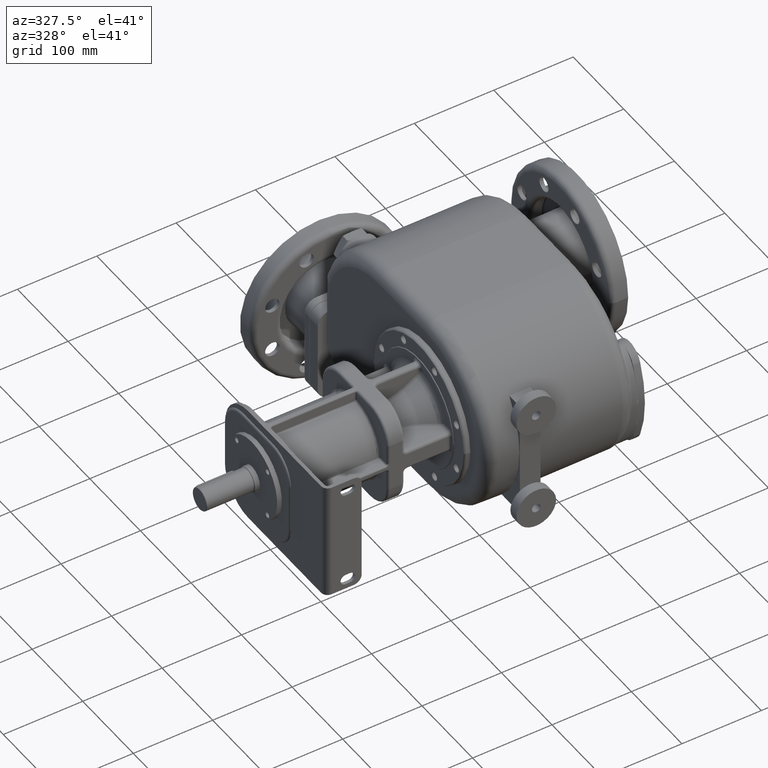
[diagram: clean part render]
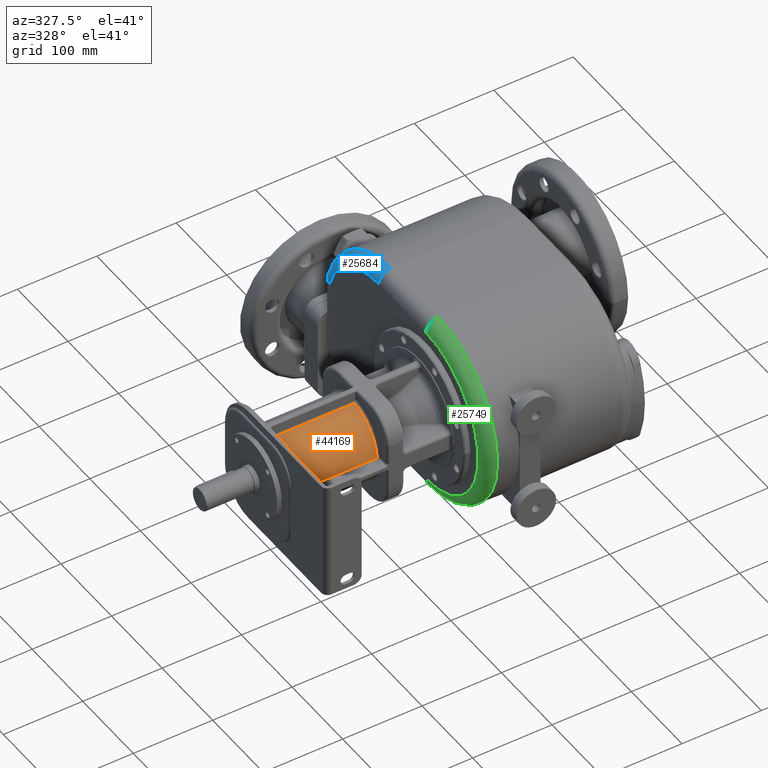
[diagram: same view with three faces highlighted in distinct colors, each labeled with its STEP entity id]
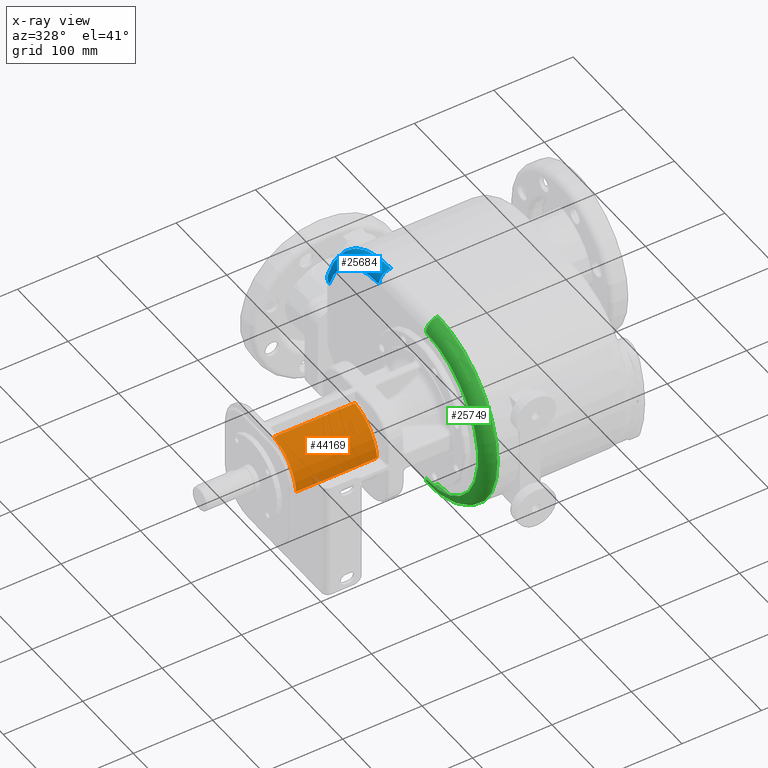
[diagram: x-ray of the same camera — body ghosted, the three highlighted faces saturated]
A machine part, auxiliary view with three faces highlighted in distinct colors.
The next image is the same camera in x-ray (body ghosted, the three faces saturated) — at least one of them is partly hidden behind the body in this view.
Their STEP definitions:

[orange] entity #44169 — the highlighted cylindrical surface (partial cylindrical patch) has radius 50 mm, axis along (-1, 0, 0).
#15715=CARTESIAN_POINT('',(-2.5E2,7.028046485410E1,5.288461539069E0));
#15792=CARTESIAN_POINT('',(-2.5E2,1.2E2,0.E0));
#15793=DIRECTION('',(1.E0,0.E0,0.E0));
#15794=DIRECTION('',(0.E0,-1.057692307692E-1,9.943907028037E-1));
#15795=AXIS2_PLACEMENT_3D('',#15792,#15793,#15794);
#15812=DIRECTION('',(-1.E0,-3.501443144142E-12,3.724428173276E-13));
#15813=VECTOR('',#15812,1.02E2);
#15814=CARTESIAN_POINT('',(-1.48E2,7.028046485446E1,5.288461539031E0));
#15815=LINE('',#15814,#15813);
#15816=DIRECTION('',(1.E0,3.722686646963E-13,-3.501234160984E-12));
#15817=VECTOR('',#15816,1.02E2);
#15818=CARTESIAN_POINT('',(-2.5E2,1.147115384609E2,4.971953514590E1));
#15819=LINE('',#15818,#15817);
#15866=CARTESIAN_POINT('',(-1.48E2,1.2E2,0.E0));
#15867=DIRECTION('',(-1.E0,0.E0,0.E0));
#15868=DIRECTION('',(0.E0,-9.943907028037E-1,1.057692307692E-1));
#15869=AXIS2_PLACEMENT_3D('',#15866,#15867,#15868);
#15871=CARTESIAN_POINT('',(-1.48E2,1.147115384610E2,4.971953514554E1));
#18982=VERTEX_POINT('',#15715);
#18983=CARTESIAN_POINT('',(-1.48E2,7.028046485446E1,5.288461539031E0));
#18984=VERTEX_POINT('',#18983);
#19070=VERTEX_POINT('',#15871);
#19071=CARTESIAN_POINT('',(-2.5E2,1.147115384609E2,4.971953514590E1));
#19072=VERTEX_POINT('',#19071);
#44156=CARTESIAN_POINT('',(-1.231E2,1.2E2,0.E0));
#44157=DIRECTION('',(-1.E0,0.E0,0.E0));
#44158=DIRECTION('',(0.E0,-1.E0,0.E0));
#44159=AXIS2_PLACEMENT_3D('',#44156,#44157,#44158);
#44160=CYLINDRICAL_SURFACE('',#44159,5.E1);
#44162=ORIENTED_EDGE('',*,*,#44161,.T.);
#44163=ORIENTED_EDGE('',*,*,#43995,.F.);
#44164=ORIENTED_EDGE('',*,*,#44147,.T.);
#44166=ORIENTED_EDGE('',*,*,#44165,.F.);
#44167=EDGE_LOOP('',(#44162,#44163,#44164,#44166));
#44168=FACE_OUTER_BOUND('',#44167,.F.);
#44169=ADVANCED_FACE('',(#44168),#44160,.T.);
#15796=CIRCLE('',#15795,5.E1);
#15870=CIRCLE('',#15869,5.E1);
#43995=EDGE_CURVE('',#19072,#18982,#15796,.T.);
#44147=EDGE_CURVE('',#19072,#19070,#15819,.T.);
#44161=EDGE_CURVE('',#18984,#18982,#15815,.T.);
#44165=EDGE_CURVE('',#18984,#19070,#15870,.T.);

[blue] entity #25684 — the highlighted toroidal blend (fillet) surface has major radius 103 mm and minor (blend) radius 15 mm.
#4977=CARTESIAN_POINT('',(-5.55E1,2.117757667375E2,0.E0));
#4978=DIRECTION('',(-1.E0,0.E0,0.E0));
#4979=DIRECTION('',(0.E0,0.E0,1.E0));
#4980=AXIS2_PLACEMENT_3D('',#4977,#4978,#4979);
#5015=CARTESIAN_POINT('',(-4.05E1,3.1E2,3.1E1));
#5016=DIRECTION('',(0.E0,3.009708737864E-1,-9.536333326453E-1));
#5017=DIRECTION('',(-1.E0,-1.515824502955E-14,0.E0));
#5018=AXIS2_PLACEMENT_3D('',#5015,#5016,#5017);
#5247=CARTESIAN_POINT('',(-4.05E1,2.117757667375E2,0.E0));
#5248=DIRECTION('',(-1.E0,0.E0,0.E0));
#5249=DIRECTION('',(0.E0,0.E0,1.E0));
#5250=AXIS2_PLACEMENT_3D('',#5247,#5248,#5249);
#5337=CARTESIAN_POINT('',(-4.05E1,2.117757667375E2,1.03E2));
#5338=DIRECTION('',(0.E0,1.E0,0.E0));
#5339=DIRECTION('',(-1.E0,0.E0,0.E0));
#5340=AXIS2_PLACEMENT_3D('',#5337,#5338,#5339);
#16958=CARTESIAN_POINT('',(-5.55E1,3.1E2,3.1E1));
#16960=VERTEX_POINT('',#16958);
#16976=CARTESIAN_POINT('',(-5.55E1,2.117757667375E2,1.03E2));
#16977=VERTEX_POINT('',#16976);
#16978=CARTESIAN_POINT('',(-4.05E1,2.117757667375E2,1.18E2));
#16979=VERTEX_POINT('',#16978);
#16980=CARTESIAN_POINT('',(-4.05E1,3.243044999897E2,3.551456310680E1));
#16981=VERTEX_POINT('',#16980);
#25673=CARTESIAN_POINT('',(-4.05E1,2.117757667375E2,0.E0));
#25674=DIRECTION('',(-1.E0,0.E0,0.E0));
#25675=DIRECTION('',(0.E0,-5.825650878094E-3,9.999830307519E-1));
#25676=AXIS2_PLACEMENT_3D('',#25673,#25674,#25675);
#25677=TOROIDAL_SURFACE('',#25676,1.03E2,1.5E1);
#25678=ORIENTED_EDGE('',*,*,#25666,.F.);
#25679=ORIENTED_EDGE('',*,*,#25365,.F.);
#25680=ORIENTED_EDGE('',*,*,#25380,.T.);
#25681=ORIENTED_EDGE('',*,*,#25419,.T.);
#25682=EDGE_LOOP('',(#25678,#25679,#25680,#25681));
#25683=FACE_OUTER_BOUND('',#25682,.F.);
#25684=ADVANCED_FACE('',(#25683),#25677,.T.);
#4981=CIRCLE('',#4980,1.03E2);
#5019=CIRCLE('',#5018,1.5E1);
#5251=CIRCLE('',#5250,1.18E2);
#5341=CIRCLE('',#5340,1.5E1);
#25365=EDGE_CURVE('',#16977,#16979,#5341,.T.);
#25380=EDGE_CURVE('',#16977,#16960,#4981,.T.);
#25419=EDGE_CURVE('',#16960,#16981,#5019,.T.);
#25666=EDGE_CURVE('',#16979,#16981,#5251,.T.);

[green] entity #25749 — the highlighted toroidal blend (fillet) surface has major radius 103 mm and minor (blend) radius 15 mm.
#4968=CARTESIAN_POINT('',(-4.05E1,1.19E2,1.03E2));
#4969=DIRECTION('',(0.E0,1.E0,0.E0));
#4970=DIRECTION('',(-1.E0,0.E0,0.E0));
#4971=AXIS2_PLACEMENT_3D('',#4968,#4969,#4970);
#4986=CARTESIAN_POINT('',(-5.55E1,1.19E2,0.E0));
#4987=DIRECTION('',(-1.E0,0.E0,0.E0));
#4988=DIRECTION('',(0.E0,0.E0,-1.E0));
#4989=AXIS2_PLACEMENT_3D('',#4986,#4987,#4988);
#5365=CARTESIAN_POINT('',(-4.05E1,1.19E2,-1.03E2));
#5366=DIRECTION('',(0.E0,-1.E0,0.E0));
#5367=DIRECTION('',(-1.E0,0.E0,0.E0));
#5368=AXIS2_PLACEMENT_3D('',#5365,#5366,#5367);
#5370=CARTESIAN_POINT('',(-4.05E1,1.19E2,0.E0));
#5371=DIRECTION('',(-1.E0,0.E0,0.E0));
#5372=DIRECTION('',(0.E0,0.E0,-1.E0));
#5373=AXIS2_PLACEMENT_3D('',#5370,#5371,#5372);
#16968=CARTESIAN_POINT('',(-5.55E1,1.19E2,-1.03E2));
#16969=VERTEX_POINT('',#16968);
#16970=CARTESIAN_POINT('',(-4.05E1,1.19E2,-1.18E2));
#16971=VERTEX_POINT('',#16970);
#16972=CARTESIAN_POINT('',(-5.55E1,1.19E2,1.03E2));
#16973=VERTEX_POINT('',#16972);
#16974=CARTESIAN_POINT('',(-4.05E1,1.19E2,1.18E2));
#16975=VERTEX_POINT('',#16974);
#25737=CARTESIAN_POINT('',(-4.05E1,1.19E2,0.E0));
#25738=DIRECTION('',(-1.E0,0.E0,0.E0));
#25739=DIRECTION('',(0.E0,5.825650878094E-3,-9.999830307519E-1));
#25740=AXIS2_PLACEMENT_3D('',#25737,#25738,#25739);
#25741=TOROIDAL_SURFACE('',#25740,1.03E2,1.5E1);
#25742=ORIENTED_EDGE('',*,*,#25383,.T.);
#25743=ORIENTED_EDGE('',*,*,#25368,.T.);
#25745=ORIENTED_EDGE('',*,*,#25744,.F.);
#25746=ORIENTED_EDGE('',*,*,#25730,.F.);
#25747=EDGE_LOOP('',(#25742,#25743,#25745,#25746));
#25748=FACE_OUTER_BOUND('',#25747,.F.);
#25749=ADVANCED_FACE('',(#25748),#25741,.T.);
#4972=CIRCLE('',#4971,1.5E1);
#4990=CIRCLE('',#4989,1.03E2);
#5369=CIRCLE('',#5368,1.5E1);
#5374=CIRCLE('',#5373,1.18E2);
#25368=EDGE_CURVE('',#16973,#16975,#4972,.T.);
#25383=EDGE_CURVE('',#16969,#16973,#4990,.T.);
#25730=EDGE_CURVE('',#16969,#16971,#5369,.T.);
#25744=EDGE_CURVE('',#16971,#16975,#5374,.T.);